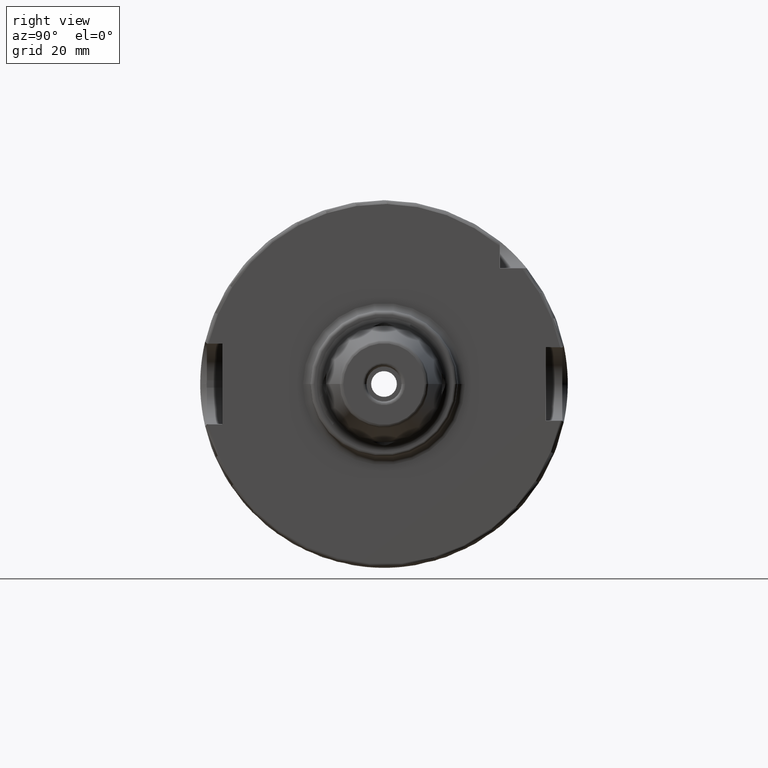
[diagram: clean part render]
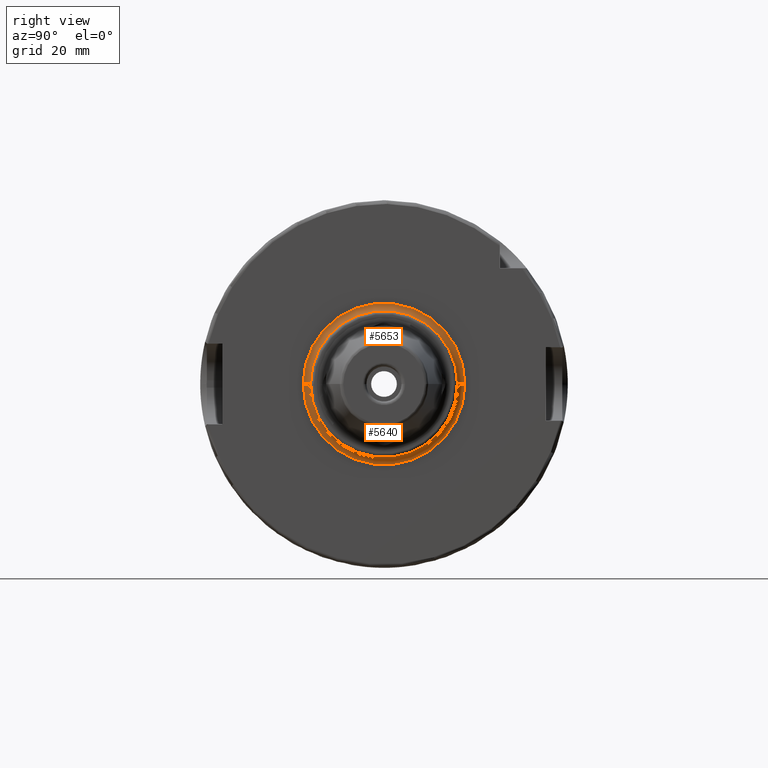
[diagram: same view with one multi-face feature highlighted, each face labeled with its STEP entity id]
A machine part, right view. The highlighted faces form ONE feature: a constant-radius fillet chain: 2 tangent blend faces with common blend radius 2 mm. The faces share edges in the B-rep.
Their STEP definitions:
[1] entity #5653 (Torus):
#1683=CARTESIAN_POINT('',(2.9E1,0.E0,0.E0));
#1684=DIRECTION('',(1.E0,0.E0,0.E0));
#1685=DIRECTION('',(0.E0,1.E0,0.E0));
#1686=AXIS2_PLACEMENT_3D('',#1683,#1684,#1685);
#2063=CARTESIAN_POINT('',(3.1E1,-2.2E1,6.692424392440E-13));
#2064=DIRECTION('',(0.E0,-3.042184559821E-14,-1.E0));
#2065=DIRECTION('',(-1.E0,2.877698079828E-13,0.E0));
#2066=AXIS2_PLACEMENT_3D('',#2063,#2064,#2065);
#2068=CARTESIAN_POINT('',(3.1E1,2.2E1,-6.721290191081E-13));
#2069=DIRECTION('',(0.E0,3.055194985890E-14,1.E0));
#2070=DIRECTION('',(-1.E0,-2.859934511434E-13,0.E0));
#2071=AXIS2_PLACEMENT_3D('',#2068,#2069,#2070);
#2073=CARTESIAN_POINT('',(3.1E1,0.E0,0.E0));
#2074=DIRECTION('',(1.E0,0.E0,0.E0));
#2075=DIRECTION('',(0.E0,1.E0,0.E0));
#2076=AXIS2_PLACEMENT_3D('',#2073,#2074,#2075);
#3408=CARTESIAN_POINT('',(2.9E1,-2.2E1,0.E0));
#3409=CARTESIAN_POINT('',(2.9E1,2.2E1,0.E0));
#3410=VERTEX_POINT('',#3408);
#3411=VERTEX_POINT('',#3409);
#3412=CARTESIAN_POINT('',(3.1E1,-2.E1,0.E0));
#3413=CARTESIAN_POINT('',(3.1E1,2.E1,0.E0));
#3414=VERTEX_POINT('',#3412);
#3415=VERTEX_POINT('',#3413);
#5641=CARTESIAN_POINT('',(3.1E1,0.E0,0.E0));
#5642=DIRECTION('',(1.E0,0.E0,0.E0));
#5643=DIRECTION('',(0.E0,9.998820776705E-1,-1.535678199555E-2));
#5644=AXIS2_PLACEMENT_3D('',#5641,#5642,#5643);
#5645=TOROIDAL_SURFACE('',#5644,2.2E1,2.E0);
#5646=ORIENTED_EDGE('',*,*,#5218,.F.);
#5647=ORIENTED_EDGE('',*,*,#5636,.T.);
#5649=ORIENTED_EDGE('',*,*,#5648,.T.);
#5650=ORIENTED_EDGE('',*,*,#5632,.F.);
#5651=EDGE_LOOP('',(#5646,#5647,#5649,#5650));
#5652=FACE_OUTER_BOUND('',#5651,.F.);
#5653=ADVANCED_FACE('',(#5652),#5645,.F.);
#1687=CIRCLE('',#1686,2.2E1);
#2067=CIRCLE('',#2066,2.E0);
#2072=CIRCLE('',#2071,2.E0);
#2077=CIRCLE('',#2076,2.E1);
#5218=EDGE_CURVE('',#3411,#3410,#1687,.T.);
#5632=EDGE_CURVE('',#3410,#3414,#2067,.T.);
#5636=EDGE_CURVE('',#3411,#3415,#2072,.T.);
#5648=EDGE_CURVE('',#3415,#3414,#2077,.T.);
[2] entity #5640 (Torus):
#1678=CARTESIAN_POINT('',(2.9E1,0.E0,0.E0));
#1679=DIRECTION('',(1.E0,0.E0,0.E0));
#1680=DIRECTION('',(0.E0,-1.E0,0.E0));
#1681=AXIS2_PLACEMENT_3D('',#1678,#1679,#1680);
#2063=CARTESIAN_POINT('',(3.1E1,-2.2E1,6.692424392440E-13));
#2064=DIRECTION('',(0.E0,-3.042184559821E-14,-1.E0));
#2065=DIRECTION('',(-1.E0,2.877698079828E-13,0.E0));
#2066=AXIS2_PLACEMENT_3D('',#2063,#2064,#2065);
#2068=CARTESIAN_POINT('',(3.1E1,2.2E1,-6.721290191081E-13));
#2069=DIRECTION('',(0.E0,3.055194985890E-14,1.E0));
#2070=DIRECTION('',(-1.E0,-2.859934511434E-13,0.E0));
#2071=AXIS2_PLACEMENT_3D('',#2068,#2069,#2070);
#2083=CARTESIAN_POINT('',(3.1E1,0.E0,0.E0));
#2084=DIRECTION('',(1.E0,0.E0,0.E0));
#2085=DIRECTION('',(0.E0,-1.E0,0.E0));
#2086=AXIS2_PLACEMENT_3D('',#2083,#2084,#2085);
#3408=CARTESIAN_POINT('',(2.9E1,-2.2E1,0.E0));
#3409=CARTESIAN_POINT('',(2.9E1,2.2E1,0.E0));
#3410=VERTEX_POINT('',#3408);
#3411=VERTEX_POINT('',#3409);
#3412=CARTESIAN_POINT('',(3.1E1,-2.E1,0.E0));
#3413=CARTESIAN_POINT('',(3.1E1,2.E1,0.E0));
#3414=VERTEX_POINT('',#3412);
#3415=VERTEX_POINT('',#3413);
#5626=CARTESIAN_POINT('',(3.1E1,0.E0,0.E0));
#5627=DIRECTION('',(1.E0,0.E0,0.E0));
#5628=DIRECTION('',(0.E0,-9.998820776705E-1,1.535678199555E-2));
#5629=AXIS2_PLACEMENT_3D('',#5626,#5627,#5628);
#5630=TOROIDAL_SURFACE('',#5629,2.2E1,2.E0);
#5631=ORIENTED_EDGE('',*,*,#5216,.F.);
#5633=ORIENTED_EDGE('',*,*,#5632,.T.);
#5635=ORIENTED_EDGE('',*,*,#5634,.T.);
#5637=ORIENTED_EDGE('',*,*,#5636,.F.);
#5638=EDGE_LOOP('',(#5631,#5633,#5635,#5637));
#5639=FACE_OUTER_BOUND('',#5638,.F.);
#5640=ADVANCED_FACE('',(#5639),#5630,.F.);
#1682=CIRCLE('',#1681,2.2E1);
#2067=CIRCLE('',#2066,2.E0);
#2072=CIRCLE('',#2071,2.E0);
#2087=CIRCLE('',#2086,2.E1);
#5216=EDGE_CURVE('',#3410,#3411,#1682,.T.);
#5632=EDGE_CURVE('',#3410,#3414,#2067,.T.);
#5634=EDGE_CURVE('',#3414,#3415,#2087,.T.);
#5636=EDGE_CURVE('',#3411,#3415,#2072,.T.);